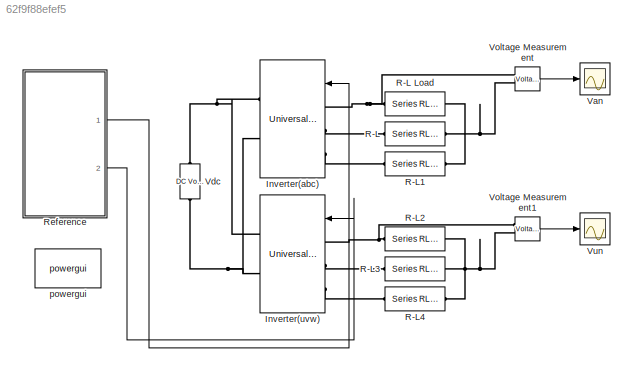
MODEL slx_62f9f88efef5
KIND model
CONFIG InitFcn = Vm=0.5;\nFc=3000;
BLOCK [Reference] Inverter(abc)  REF=powerlib/Power
Electronics/Universal Bridge
  Arms = 3
  Device = IGBT / Diodes
  ForwardVoltage = 0
  ForwardVoltages = [  0  0  ]
  GTOparameters = [ 10e-6 , 20e-6 ]
  IGBTparameters = [ 1e-6 , 2e-6 ]
  Lon = 0
  Measurements = None
  Measurements_2 = None
  Ports = [1, 0, 0, 0, 0, 3, 2]
  Ron = 1e-3
  SnubberCapacitance = inf
  SnubberResistance = 1e5
  SourceBlock = powerlib/Power\nElectronics/Universal Bridge
  SourceType = Universal Bridge
  converterType = Rectifier
BLOCK [Reference] Inverter(uvw)  REF=powerlib/Power
Electronics/Universal Bridge
  Arms = 3
  Device = IGBT / Diodes
  ForwardVoltage = 0
  ForwardVoltages = [  0  0  ]
  GTOparameters = [ 10e-6 , 20e-6 ]
  IGBTparameters = [ 1e-6 , 2e-6 ]
  Lon = 0
  Measurements = None
  Measurements_2 = None
  Ports = [1, 0, 0, 0, 0, 3, 2]
  Ron = 1e-3
  SnubberCapacitance = inf
  SnubberResistance = 1e5
  SourceBlock = powerlib/Power\nElectronics/Universal Bridge
  SourceType = Universal Bridge
  converterType = Rectifier
BLOCK [Reference] R-L  REF=powerlib/Elements/Series RLC Branch
  AttributesFormatString = \n
  BranchType = RL
  Capacitance = []
  Inductance = 1e-03
  InitialCurrent = 0
  InitialVoltage = 0
  LConnTagsString = __new0
  Measurements = None
  Ports = [0, 0, 0, 0, 0, 1, 1]
  RConnTagsString = __new0
  Resistance = 10
  SetiL0 = off
  Setx0 = off
  SourceBlock = powerlib/Elements/Series RLC Branch
  SourceType = Series RLC Branch
BLOCK [Reference] R-L Load  REF=powerlib/Elements/Series RLC Branch
  AttributesFormatString = \n
  BranchType = RL
  Capacitance = []
  Inductance = 1e-03
  InitialCurrent = 0
  InitialVoltage = 0
  LConnTagsString = __new0
  Measurements = None
  Ports = [0, 0, 0, 0, 0, 1, 1]
  RConnTagsString = __new0
  Resistance = 10
  SetiL0 = off
  Setx0 = off
  SourceBlock = powerlib/Elements/Series RLC Branch
  SourceType = Series RLC Branch
BLOCK [Reference] R-L1  REF=powerlib/Elements/Series RLC Branch
  AttributesFormatString = \n
  BranchType = RL
  Capacitance = []
  Inductance = 1e-03
  InitialCurrent = 0
  InitialVoltage = 0
  LConnTagsString = __new0
  Measurements = None
  Ports = [0, 0, 0, 0, 0, 1, 1]
  RConnTagsString = __new0
  Resistance = 10
  SetiL0 = off
  Setx0 = off
  SourceBlock = powerlib/Elements/Series RLC Branch
  SourceType = Series RLC Branch
BLOCK [Reference] R-L2  REF=powerlib/Elements/Series RLC Branch
  AttributesFormatString = \n
  BranchType = RL
  Capacitance = []
  Inductance = 1e-03
  InitialCurrent = 0
  InitialVoltage = 0
  LConnTagsString = __new0
  Measurements = None
  Ports = [0, 0, 0, 0, 0, 1, 1]
  RConnTagsString = __new0
  Resistance = 10
  SetiL0 = off
  Setx0 = off
  SourceBlock = powerlib/Elements/Series RLC Branch
  SourceType = Series RLC Branch
BLOCK [Reference] R-L3  REF=powerlib/Elements/Series RLC Branch
  AttributesFormatString = \n
  BranchType = RL
  Capacitance = []
  Inductance = 1e-03
  InitialCurrent = 0
  InitialVoltage = 0
  LConnTagsString = __new0
  Measurements = None
  Ports = [0, 0, 0, 0, 0, 1, 1]
  RConnTagsString = __new0
  Resistance = 10
  SetiL0 = off
  Setx0 = off
  SourceBlock = powerlib/Elements/Series RLC Branch
  SourceType = Series RLC Branch
BLOCK [Reference] R-L4  REF=powerlib/Elements/Series RLC Branch
  AttributesFormatString = \n
  BranchType = RL
  Capacitance = []
  Inductance = 1e-03
  InitialCurrent = 0
  InitialVoltage = 0
  LConnTagsString = __new0
  Measurements = None
  Ports = [0, 0, 0, 0, 0, 1, 1]
  RConnTagsString = __new0
  Resistance = 10
  SetiL0 = off
  Setx0 = off
  SourceBlock = powerlib/Elements/Series RLC Branch
  SourceType = Series RLC Branch
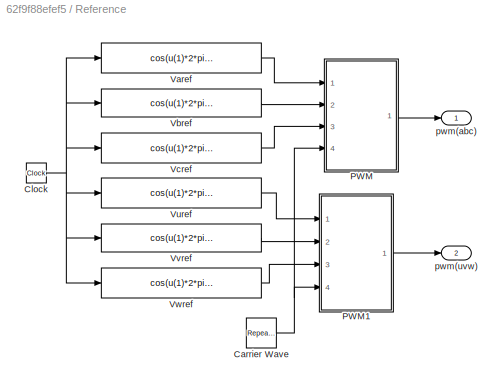
BLOCK [SubSystem] Reference
  Ports = [0, 2]
  RequestExecContextInheritance = off
BLOCK [Reference] Reference/Carrier Wave  REF=simulink/Sources/Repeating
Sequence
  Ports = [0, 1]
  SourceBlock = simulink/Sources/Repeating\nSequence
  SourceType = Repeating table
  rep_seq_t = [0 1/Fc/4 3/Fc/4 1/Fc]
  rep_seq_y = [0 -1 1 0]
BLOCK [Clock] Reference/Clock
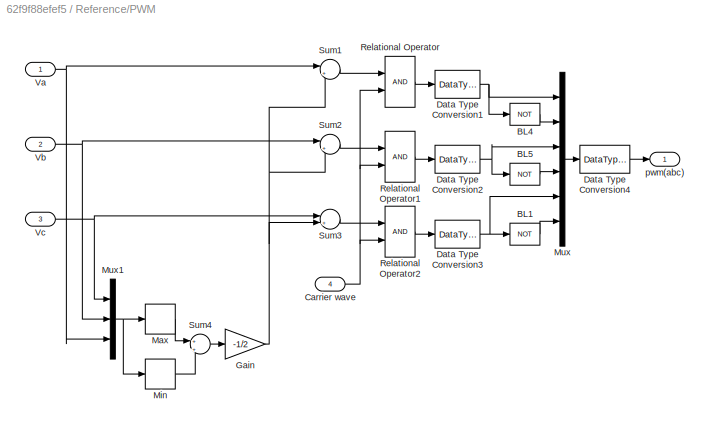
BLOCK [SubSystem] Reference/PWM
  Ports = [4, 1]
  RequestExecContextInheritance = off
BLOCK [Logic] Reference/PWM/BL1
  Inputs = 1
  Operator = NOT
  Ports = [1, 1]
BLOCK [Logic] Reference/PWM/BL4
  Inputs = 1
  Operator = NOT
  Ports = [1, 1]
BLOCK [Logic] Reference/PWM/BL5
  Inputs = 1
  Operator = NOT
  Ports = [1, 1]
BLOCK [Inport] Reference/PWM/Carrier wave
  IconDisplay = Port number
  Port = 4
BLOCK [DataTypeConversion] Reference/PWM/Data Type Conversion1
  OutDataTypeStr = boolean
BLOCK [DataTypeConversion] Reference/PWM/Data Type Conversion2
  OutDataTypeStr = boolean
BLOCK [DataTypeConversion] Reference/PWM/Data Type Conversion3
  OutDataTypeStr = boolean
BLOCK [DataTypeConversion] Reference/PWM/Data Type Conversion4
  OutDataTypeStr = double
BLOCK [Gain] Reference/PWM/Gain
  Gain = -1/2
  OutDataTypeStr = Inherit: Inherit via internal rule
  ParamDataTypeStr = Inherit: Inherit via internal rule
  SaturateOnIntegerOverflow = off
BLOCK [MinMax] Reference/PWM/Max
  Function = max
  InputSameDT = off
  Ports = [1, 1]
  SaturateOnIntegerOverflow = off
BLOCK [MinMax] Reference/PWM/Min
  InputSameDT = off
  Ports = [1, 1]
  SaturateOnIntegerOverflow = off
BLOCK [Mux] Reference/PWM/Mux
  DisplayOption = bar
  Inputs = 6
  Ports = [6, 1]
BLOCK [Mux] Reference/PWM/Mux1
  DisplayOption = bar
  Inputs = 3
  Ports = [3, 1]
BLOCK [RelationalOperator] Reference/PWM/Relational Operator
  Ports = [2, 1]
BLOCK [RelationalOperator] Reference/PWM/Relational Operator1
  Ports = [2, 1]
BLOCK [RelationalOperator] Reference/PWM/Relational Operator2
  Ports = [2, 1]
BLOCK [Sum] Reference/PWM/Sum1
  IconShape = round
  InputSameDT = off
  Inputs = |++
  OutDataTypeStr = Inherit: Inherit via internal rule
  Ports = [2, 1]
  SaturateOnIntegerOverflow = off
BLOCK [Sum] Reference/PWM/Sum2
  IconShape = round
  InputSameDT = off
  Inputs = |++
  OutDataTypeStr = Inherit: Inherit via internal rule
  Ports = [2, 1]
  SaturateOnIntegerOverflow = off
BLOCK [Sum] Reference/PWM/Sum3
  IconShape = round
  InputSameDT = off
  Inputs = |++
  OutDataTypeStr = Inherit: Inherit via internal rule
  Ports = [2, 1]
  SaturateOnIntegerOverflow = off
BLOCK [Sum] Reference/PWM/Sum4
  IconShape = round
  InputSameDT = off
  Inputs = +|+
  OutDataTypeStr = Inherit: Inherit via internal rule
  Ports = [2, 1]
  SaturateOnIntegerOverflow = off
BLOCK [Inport] Reference/PWM/Va
  IconDisplay = Port number
BLOCK [Inport] Reference/PWM/Vb
  IconDisplay = Port number
  Port = 2
BLOCK [Inport] Reference/PWM/Vc
  IconDisplay = Port number
  Port = 3
BLOCK [Outport] Reference/PWM/pwm(abc)
  IconDisplay = Port number
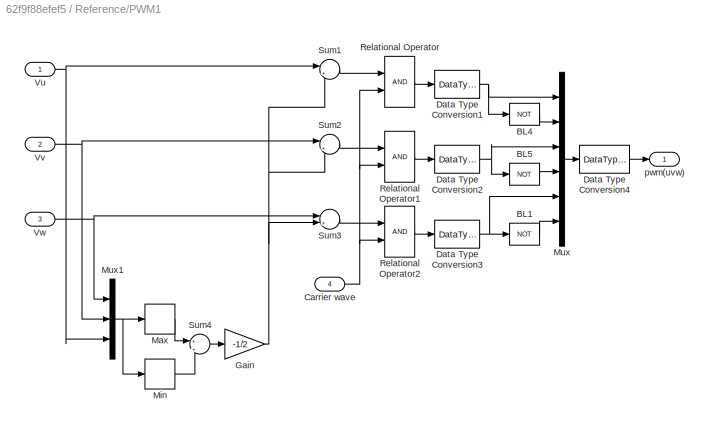
BLOCK [SubSystem] Reference/PWM1
  Ports = [4, 1]
  RequestExecContextInheritance = off
BLOCK [Logic] Reference/PWM1/BL1
  Inputs = 1
  Operator = NOT
  Ports = [1, 1]
BLOCK [Logic] Reference/PWM1/BL4
  Inputs = 1
  Operator = NOT
  Ports = [1, 1]
BLOCK [Logic] Reference/PWM1/BL5
  Inputs = 1
  Operator = NOT
  Ports = [1, 1]
BLOCK [Inport] Reference/PWM1/Carrier wave
  IconDisplay = Port number
  Port = 4
BLOCK [DataTypeConversion] Reference/PWM1/Data Type Conversion1
  OutDataTypeStr = boolean
BLOCK [DataTypeConversion] Reference/PWM1/Data Type Conversion2
  OutDataTypeStr = boolean
BLOCK [DataTypeConversion] Reference/PWM1/Data Type Conversion3
  OutDataTypeStr = boolean
BLOCK [DataTypeConversion] Reference/PWM1/Data Type Conversion4
  OutDataTypeStr = double
BLOCK [Gain] Reference/PWM1/Gain
  Gain = -1/2
  OutDataTypeStr = Inherit: Inherit via internal rule
  ParamDataTypeStr = Inherit: Inherit via internal rule
  SaturateOnIntegerOverflow = off
BLOCK [MinMax] Reference/PWM1/Max
  Function = max
  InputSameDT = off
  Ports = [1, 1]
  SaturateOnIntegerOverflow = off
BLOCK [MinMax] Reference/PWM1/Min
  InputSameDT = off
  Ports = [1, 1]
  SaturateOnIntegerOverflow = off
BLOCK [Mux] Reference/PWM1/Mux
  DisplayOption = bar
  Inputs = 6
  Ports = [6, 1]
BLOCK [Mux] Reference/PWM1/Mux1
  DisplayOption = bar
  Inputs = 3
  Ports = [3, 1]
BLOCK [RelationalOperator] Reference/PWM1/Relational Operator
  Ports = [2, 1]
BLOCK [RelationalOperator] Reference/PWM1/Relational Operator1
  Ports = [2, 1]
BLOCK [RelationalOperator] Reference/PWM1/Relational Operator2
  Ports = [2, 1]
BLOCK [Sum] Reference/PWM1/Sum1
  IconShape = round
  InputSameDT = off
  Inputs = |++
  OutDataTypeStr = Inherit: Inherit via internal rule
  Ports = [2, 1]
  SaturateOnIntegerOverflow = off
BLOCK [Sum] Reference/PWM1/Sum2
  IconShape = round
  InputSameDT = off
  Inputs = |++
  OutDataTypeStr = Inherit: Inherit via internal rule
  Ports = [2, 1]
  SaturateOnIntegerOverflow = off
BLOCK [Sum] Reference/PWM1/Sum3
  IconShape = round
  InputSameDT = off
  Inputs = |++
  OutDataTypeStr = Inherit: Inherit via internal rule
  Ports = [2, 1]
  SaturateOnIntegerOverflow = off
BLOCK [Sum] Reference/PWM1/Sum4
  IconShape = round
  InputSameDT = off
  Inputs = +|+
  OutDataTypeStr = Inherit: Inherit via internal rule
  Ports = [2, 1]
  SaturateOnIntegerOverflow = off
BLOCK [Inport] Reference/PWM1/Vu
  IconDisplay = Port number
BLOCK [Inport] Reference/PWM1/Vv
  IconDisplay = Port number
  Port = 2
BLOCK [Inport] Reference/PWM1/Vw
  IconDisplay = Port number
  Port = 3
BLOCK [Outport] Reference/PWM1/pwm(uvw)
  IconDisplay = Port number
BLOCK [Fcn] Reference/Varef
  Expr = cos(u(1)*2*pi*50)*Vm
BLOCK [Fcn] Reference/Vbref
  Expr = cos(u(1)*2*pi*50-2*pi/3)*Vm
BLOCK [Fcn] Reference/Vcref
  Expr = cos(u(1)*2*pi*50+2*pi/3)*Vm
BLOCK [Fcn] Reference/Vuref
  Expr = cos(u(1)*2*pi*50-pi/6)*Vm
BLOCK [Fcn] Reference/Vvref
  Expr = cos(u(1)*2*pi*50-5*pi/6)*Vm
BLOCK [Fcn] Reference/Vwref
  Expr = cos(u(1)*2*pi*50+pi/2)*Vm
BLOCK [Outport] Reference/pwm(abc)
  IconDisplay = Port number
BLOCK [Outport] Reference/pwm(uvw)
  IconDisplay = Port number
  Port = 2
BLOCK [Scope] Van
  DataFormat = StructureWithTime
  Floating = off
  LimitDataPoints = off
  NumInputPorts = 1
  Ports = [1]
  SampleInput = on
  SampleTime = 1e-6
  SaveName = Van
  SaveToWorkspace = on
  ShowLegends = off
  TimeRange = 0.05
  YMax = 200
  YMin = -200
BLOCK [Reference] Vdc  REF=powerlib/Electrical
Sources/DC Voltage Source
  Amplitude = 300
  Measurements = None
  Ports = [0, 0, 0, 0, 0, 1, 1]
  SourceBlock = powerlib/Electrical\nSources/DC Voltage Source
  SourceType = DC Voltage Source
BLOCK [Reference] Voltage Measurement  REF=powerlib/Measurements/Voltage Measurement
  OutputType = Complex
  PSBequivalent = 0
  PhasorSimulation = off
  Ports = [0, 1, 0, 0, 0, 2]
  SourceBlock = powerlib/Measurements/Voltage Measurement
  SourceType = Voltage Measurement
BLOCK [Reference] Voltage Measurement1  REF=powerlib/Measurements/Voltage Measurement
  OutputType = Complex
  PSBequivalent = 0
  PhasorSimulation = off
  Ports = [0, 1, 0, 0, 0, 2]
  SourceBlock = powerlib/Measurements/Voltage Measurement
  SourceType = Voltage Measurement
BLOCK [Scope] Vun
  DataFormat = StructureWithTime
  Floating = off
  LimitDataPoints = off
  NumInputPorts = 1
  Ports = [1]
  SampleInput = on
  SampleTime = 1e-6
  SaveName = Vbn
  SaveToWorkspace = on
  ShowLegends = off
  YMax = 200
  YMin = -200
BLOCK [Reference] powergui  REF=powerlib/powergui
  DisableRonSwitches = off
  DisableSnubberDevices = off
  DisableVfSwitches = off
  DisplayEquations = off
  DisplayStyle = 1
  EnableUseOfTLC = off
  ErrMax = 1e-4
  Frange = [0:2:500]
  FreqAxis = off
  FunctionMessages = off
  HookPort = off
  Interpol = off
  Iterations = 50
  MaxFrequency = 1000
  Pbase = 100e6
  Ports = []
  Priority = 1
  ResistiveCurrentMeasurement = off
  RestoreLinks = warning
  RmsSteady = 1
  SPID = off
  SampleTime = 50e-6
  ShowGrid = off
  SolverType = Tustin/Backward Euler (TBE)
  SourceBlock = powerlib/powergui
  SourceType = PSB option menu block
  StartTime = 0.0
  SwTol = 0
  Ts = 100
  UnitsV = kV
  UnitsW = MW
  UserDataPersistent = on
  Xlog = on
  Ylog = off
  ZoomFFT = off
  cycles = 1
  display = off
  echomessages = off
  frequency = 60
  frequencyindice = 0
  frequencyindicesteady = 1
  fundamental = 60
  methode = off
  save = off
  structure = 0
  variable = ZData
  x0status = blocks
NET Reference/Carrier Wave:1 -> Reference/PWM1:4, Reference/PWM:4
NET Reference/Clock:1 -> Reference/Varef:1, Reference/Vbref:1, Reference/Vcref:1, Reference/Vuref:1, Reference/Vvref:1, Reference/Vwref:1
LINE Reference/PWM/BL1:1 -> Reference/PWM/Mux:6
LINE Reference/PWM/BL4:1 -> Reference/PWM/Mux:2
LINE Reference/PWM/BL5:1 -> Reference/PWM/Mux:4
NET Reference/PWM/Carrier wave:1 -> Reference/PWM/Relational Operator1:2, Reference/PWM/Relational Operator2:2, Reference/PWM/Relational Operator:2
NET Reference/PWM/Data Type Conversion1:1 -> Reference/PWM/BL4:1, Reference/PWM/Mux:1
NET Reference/PWM/Data Type Conversion2:1 -> Reference/PWM/BL5:1, Reference/PWM/Mux:3
NET Reference/PWM/Data Type Conversion3:1 -> Reference/PWM/BL1:1, Reference/PWM/Mux:5
LINE Reference/PWM/Data Type Conversion4:1 -> Reference/PWM/pwm(abc):1
NET Reference/PWM/Gain:1 -> Reference/PWM/Sum1:2, Reference/PWM/Sum2:2, Reference/PWM/Sum3:2
LINE Reference/PWM/Max:1 -> Reference/PWM/Sum4:1
LINE Reference/PWM/Min:1 -> Reference/PWM/Sum4:2
NET Reference/PWM/Mux1:1 -> Reference/PWM/Max:1, Reference/PWM/Min:1
LINE Reference/PWM/Mux:1 -> Reference/PWM/Data Type Conversion4:1
LINE Reference/PWM/Relational Operator1:1 -> Reference/PWM/Data Type Conversion2:1
LINE Reference/PWM/Relational Operator2:1 -> Reference/PWM/Data Type Conversion3:1
LINE Reference/PWM/Relational Operator:1 -> Reference/PWM/Data Type Conversion1:1
LINE Reference/PWM/Sum1:1 -> Reference/PWM/Relational Operator:1
LINE Reference/PWM/Sum2:1 -> Reference/PWM/Relational Operator1:1
LINE Reference/PWM/Sum3:1 -> Reference/PWM/Relational Operator2:1
LINE Reference/PWM/Sum4:1 -> Reference/PWM/Gain:1
NET Reference/PWM/Va:1 -> Reference/PWM/Mux1:3, Reference/PWM/Sum1:1
NET Reference/PWM/Vb:1 -> Reference/PWM/Mux1:2, Reference/PWM/Sum2:1
NET Reference/PWM/Vc:1 -> Reference/PWM/Mux1:1, Reference/PWM/Sum3:1
LINE Reference/PWM1/BL1:1 -> Reference/PWM1/Mux:6
LINE Reference/PWM1/BL4:1 -> Reference/PWM1/Mux:2
LINE Reference/PWM1/BL5:1 -> Reference/PWM1/Mux:4
NET Reference/PWM1/Carrier wave:1 -> Reference/PWM1/Relational Operator1:2, Reference/PWM1/Relational Operator2:2, Reference/PWM1/Relational Operator:2
NET Reference/PWM1/Data Type Conversion1:1 -> Reference/PWM1/BL4:1, Reference/PWM1/Mux:1
NET Reference/PWM1/Data Type Conversion2:1 -> Reference/PWM1/BL5:1, Reference/PWM1/Mux:3
NET Reference/PWM1/Data Type Conversion3:1 -> Reference/PWM1/BL1:1, Reference/PWM1/Mux:5
LINE Reference/PWM1/Data Type Conversion4:1 -> Reference/PWM1/pwm(uvw):1
NET Reference/PWM1/Gain:1 -> Reference/PWM1/Sum1:2, Reference/PWM1/Sum2:2, Reference/PWM1/Sum3:2
LINE Reference/PWM1/Max:1 -> Reference/PWM1/Sum4:1
LINE Reference/PWM1/Min:1 -> Reference/PWM1/Sum4:2
NET Reference/PWM1/Mux1:1 -> Reference/PWM1/Max:1, Reference/PWM1/Min:1
LINE Reference/PWM1/Mux:1 -> Reference/PWM1/Data Type Conversion4:1
LINE Reference/PWM1/Relational Operator1:1 -> Reference/PWM1/Data Type Conversion2:1
LINE Reference/PWM1/Relational Operator2:1 -> Reference/PWM1/Data Type Conversion3:1
LINE Reference/PWM1/Relational Operator:1 -> Reference/PWM1/Data Type Conversion1:1
LINE Reference/PWM1/Sum1:1 -> Reference/PWM1/Relational Operator:1
LINE Reference/PWM1/Sum2:1 -> Reference/PWM1/Relational Operator1:1
LINE Reference/PWM1/Sum3:1 -> Reference/PWM1/Relational Operator2:1
LINE Reference/PWM1/Sum4:1 -> Reference/PWM1/Gain:1
NET Reference/PWM1/Vu:1 -> Reference/PWM1/Mux1:3, Reference/PWM1/Sum1:1
NET Reference/PWM1/Vv:1 -> Reference/PWM1/Mux1:2, Reference/PWM1/Sum2:1
NET Reference/PWM1/Vw:1 -> Reference/PWM1/Mux1:1, Reference/PWM1/Sum3:1
LINE Reference/PWM1:1 -> Reference/pwm(uvw):1
LINE Reference/PWM:1 -> Reference/pwm(abc):1
LINE Reference/Varef:1 -> Reference/PWM:1
LINE Reference/Vbref:1 -> Reference/PWM:2
LINE Reference/Vcref:1 -> Reference/PWM:3
LINE Reference/Vuref:1 -> Reference/PWM1:1
LINE Reference/Vvref:1 -> Reference/PWM1:2
LINE Reference/Vwref:1 -> Reference/PWM1:3
LINE Reference:1 -> Inverter(abc):1
LINE Reference:2 -> Inverter(uvw):1
LINE Voltage Measurement1:1 -> Vun:1
LINE Voltage Measurement:1 -> Van:1
PNET net1: Inverter(abc):LConn1 -- R-L Load:LConn1 -- Voltage Measurement:LConn1
PLINE Inverter(abc):LConn2 -- R-L:LConn1
PLINE Inverter(abc):LConn3 -- R-L1:LConn1
PNET net2: Inverter(abc):RConn1 -- Inverter(uvw):RConn1 -- Vdc:RConn1
PNET net3: Inverter(abc):RConn2 -- Inverter(uvw):RConn2 -- Vdc:LConn1
PNET net4: Inverter(uvw):LConn1 -- R-L2:LConn1 -- Voltage Measurement1:LConn1
PLINE Inverter(uvw):LConn2 -- R-L3:LConn1
PLINE Inverter(uvw):LConn3 -- R-L4:LConn1
PNET net5: R-L Load:RConn1 -- R-L1:RConn1 -- R-L:RConn1 -- Voltage Measurement:LConn2
PNET net6: R-L2:RConn1 -- R-L3:RConn1 -- R-L4:RConn1 -- Voltage Measurement1:LConn2
note: NET lines group one-source signal fan-out (src -> all destinations, sorted); 1:1 wires keep LINE; PNET lines group multi-terminal physical nets as a canonical sorted terminal list (undirected conserving connections); 2-terminal nets keep the pairwise PLINE form
